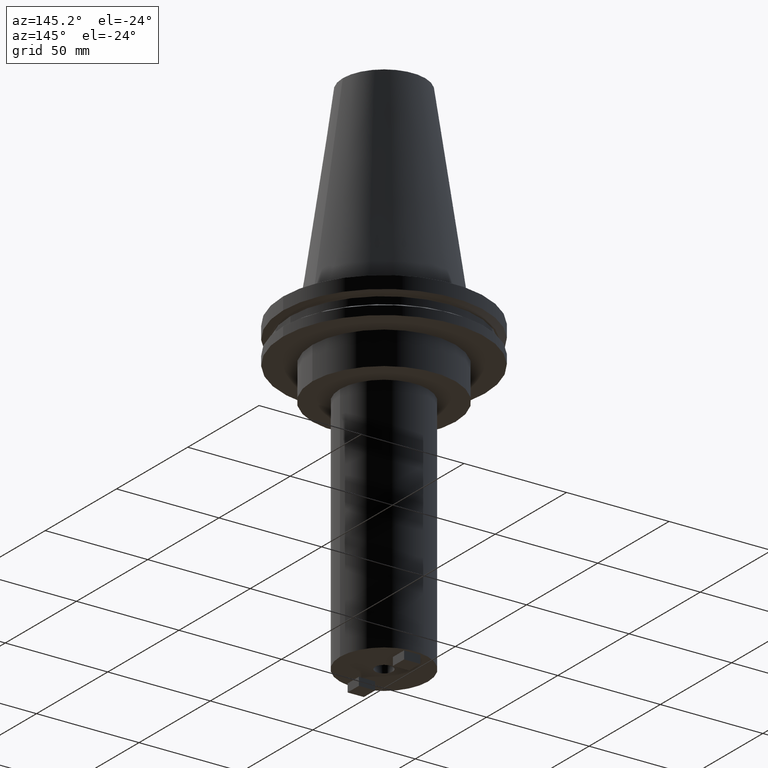
[diagram: clean part render]
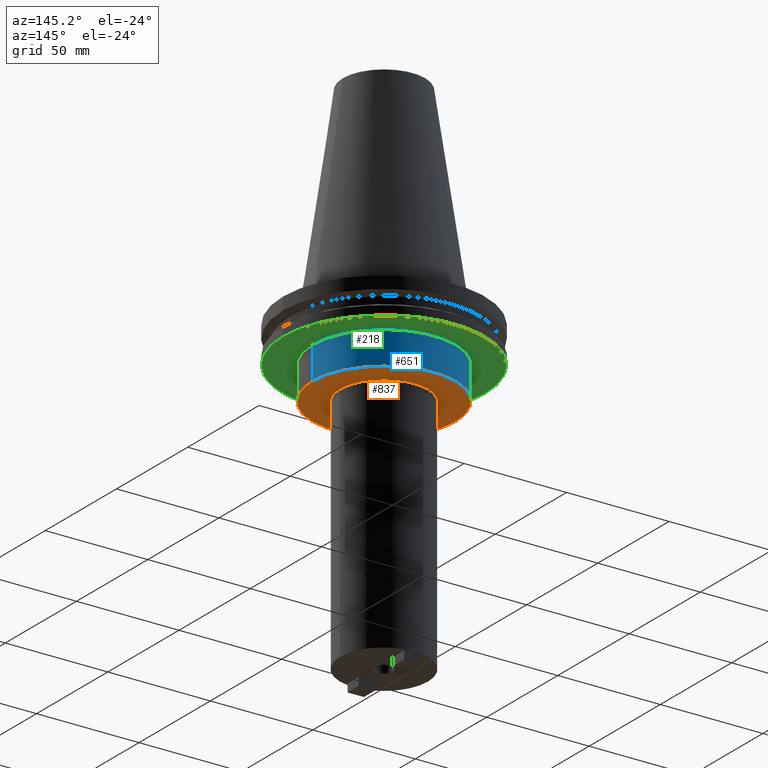
[diagram: same view with three faces highlighted in distinct colors, each labeled with its STEP entity id]
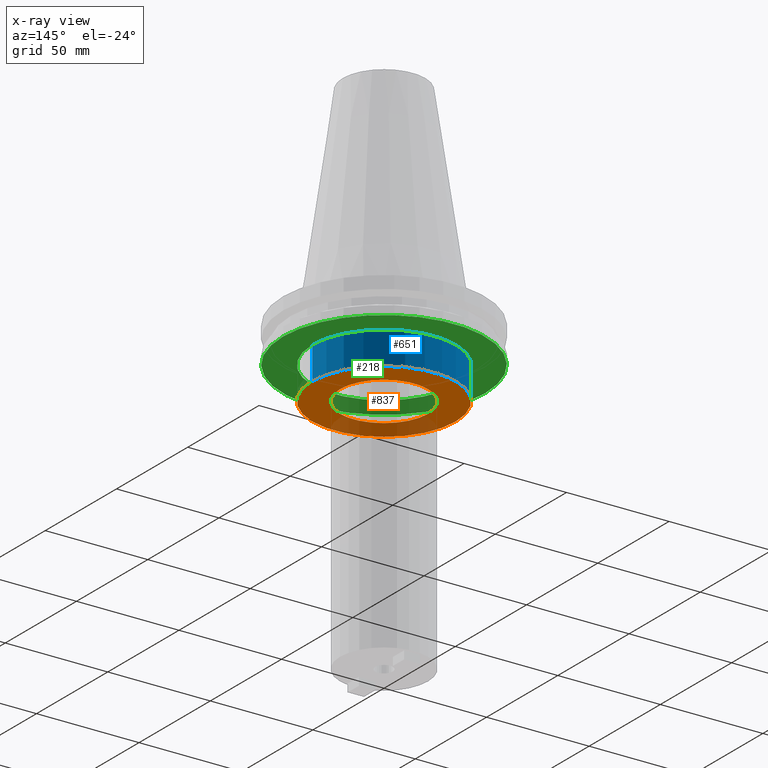
[diagram: x-ray of the same camera — body ghosted, the three highlighted faces saturated]
A machine part, auxiliary view with three faces highlighted in distinct colors.
The next image is the same camera in x-ray (body ghosted, the three faces saturated) — at least one of them is partly hidden behind the body in this view.
Their STEP definitions:

[orange] entity #837 — the highlighted planar face has unit normal (0, -0, 1).
#29 = AXIS2_PLACEMENT_3D ( 'NONE', #1075, #139, #559 ) ;
#40 = VERTEX_POINT ( 'NONE', #289 ) ;
#58 = FACE_BOUND ( 'NONE', #421, .T. ) ;
#102 = EDGE_LOOP ( 'NONE', ( #1059, #880 ) ) ;
#139 = DIRECTION ( 'NONE',  ( -0.000000000000000000, -0.000000000000000000, 1.000000000000000000 ) ) ;
#170 = CIRCLE ( 'NONE', #321, 21.45029999999999859 ) ;
#173 = DIRECTION ( 'NONE',  ( 1.000000000000000000, 0.000000000000000000, 0.000000000000000000 ) ) ;
#203 = VERTEX_POINT ( 'NONE', #226 ) ;
#210 = CARTESIAN_POINT ( 'NONE',  ( 21.45029999999999859, 0.000000000000000000, -35.04999999999999716 ) ) ;
#226 = CARTESIAN_POINT ( 'NONE',  ( -34.92499999999999716, 4.277078946022130887E-15, -35.04999999999999716 ) ) ;
#241 = AXIS2_PLACEMENT_3D ( 'NONE', #1067, #390, #789 ) ;
#253 = AXIS2_PLACEMENT_3D ( 'NONE', #316, #910, #488 ) ;
#254 = CARTESIAN_POINT ( 'NONE',  ( 0.000000000000000000, 0.000000000000000000, -35.04999999999999716 ) ) ;
#270 = EDGE_CURVE ( 'NONE', #778, #660, #170, .T. ) ;
#288 = ORIENTED_EDGE ( 'NONE', *, *, #270, .T. ) ;
#289 = CARTESIAN_POINT ( 'NONE',  ( 34.92499999999999716, 0.000000000000000000, -35.04999999999999716 ) ) ;
#309 = PLANE ( 'NONE',  #534 ) ;
#316 = CARTESIAN_POINT ( 'NONE',  ( 0.000000000000000000, 0.000000000000000000, -35.04999999999999716 ) ) ;
#321 = AXIS2_PLACEMENT_3D ( 'NONE', #254, #413, #173 ) ;
#370 = DIRECTION ( 'NONE',  ( 1.000000000000000000, 0.000000000000000000, 0.000000000000000000 ) ) ;
#384 = FACE_OUTER_BOUND ( 'NONE', #102, .T. ) ;
#390 = DIRECTION ( 'NONE',  ( -0.000000000000000000, -0.000000000000000000, 1.000000000000000000 ) ) ;
#413 = DIRECTION ( 'NONE',  ( -0.000000000000000000, -0.000000000000000000, 1.000000000000000000 ) ) ;
#421 = EDGE_LOOP ( 'NONE', ( #288, #1065 ) ) ;
#430 = CIRCLE ( 'NONE', #241, 34.92499999999999716 ) ;
#488 = DIRECTION ( 'NONE',  ( 1.000000000000000000, 0.000000000000000000, 0.000000000000000000 ) ) ;
#534 = AXIS2_PLACEMENT_3D ( 'NONE', #709, #808, #370 ) ;
#559 = DIRECTION ( 'NONE',  ( 1.000000000000000000, 0.000000000000000000, 0.000000000000000000 ) ) ;
#563 = CIRCLE ( 'NONE', #29, 34.92499999999999716 ) ;
#598 = CIRCLE ( 'NONE', #253, 21.45029999999999859 ) ;
#660 = VERTEX_POINT ( 'NONE', #949 ) ;
#709 = CARTESIAN_POINT ( 'NONE',  ( 0.000000000000000000, 34.92499999999999716, -35.04999999999999716 ) ) ;
#778 = VERTEX_POINT ( 'NONE', #210 ) ;
#789 = DIRECTION ( 'NONE',  ( 1.000000000000000000, 0.000000000000000000, 0.000000000000000000 ) ) ;
#808 = DIRECTION ( 'NONE',  ( 0.000000000000000000, -0.000000000000000000, 1.000000000000000000 ) ) ;
#837 = ADVANCED_FACE ( 'NONE', ( #58, #384 ), #309, .F. ) ;
#870 = EDGE_CURVE ( 'NONE', #203, #40, #430, .T. ) ;
#878 = EDGE_CURVE ( 'NONE', #40, #203, #563, .T. ) ;
#880 = ORIENTED_EDGE ( 'NONE', *, *, #870, .F. ) ;
#910 = DIRECTION ( 'NONE',  ( -0.000000000000000000, -0.000000000000000000, 1.000000000000000000 ) ) ;
#949 = CARTESIAN_POINT ( 'NONE',  ( -21.45029999999999859, 2.626904123575046818E-15, -35.04999999999999716 ) ) ;
#959 = EDGE_CURVE ( 'NONE', #660, #778, #598, .T. ) ;
#1059 = ORIENTED_EDGE ( 'NONE', *, *, #878, .F. ) ;
#1065 = ORIENTED_EDGE ( 'NONE', *, *, #959, .T. ) ;
#1067 = CARTESIAN_POINT ( 'NONE',  ( 0.000000000000000000, 0.000000000000000000, -35.04999999999999716 ) ) ;
#1075 = CARTESIAN_POINT ( 'NONE',  ( 0.000000000000000000, 0.000000000000000000, -35.04999999999999716 ) ) ;

[blue] entity #651 — the highlighted cylindrical surface (partial cylindrical patch) has radius 34.925 mm, axis along (-0, -0, 1).
#7 = ORIENTED_EDGE ( 'NONE', *, *, #950, .F. ) ;
#9 = DIRECTION ( 'NONE',  ( -0.000000000000000000, -0.000000000000000000, 1.000000000000000000 ) ) ;
#12 = CARTESIAN_POINT ( 'NONE',  ( 0.000000000000000000, 0.000000000000000000, -19.04999999999999716 ) ) ;
#29 = AXIS2_PLACEMENT_3D ( 'NONE', #1075, #139, #559 ) ;
#40 = VERTEX_POINT ( 'NONE', #289 ) ;
#67 = VECTOR ( 'NONE', #893, 1000.000000000000000 ) ;
#77 = DIRECTION ( 'NONE',  ( 1.000000000000000000, 0.000000000000000000, 0.000000000000000000 ) ) ;
#90 = CYLINDRICAL_SURFACE ( 'NONE', #812, 34.92499999999999716 ) ;
#109 = LINE ( 'NONE', #861, #712 ) ;
#113 = DIRECTION ( 'NONE',  ( -0.000000000000000000, -0.000000000000000000, 1.000000000000000000 ) ) ;
#139 = DIRECTION ( 'NONE',  ( -0.000000000000000000, -0.000000000000000000, 1.000000000000000000 ) ) ;
#165 = CIRCLE ( 'NONE', #634, 34.92499999999999716 ) ;
#189 = VERTEX_POINT ( 'NONE', #792 ) ;
#203 = VERTEX_POINT ( 'NONE', #226 ) ;
#226 = CARTESIAN_POINT ( 'NONE',  ( -34.92499999999999716, 4.277078946022130887E-15, -35.04999999999999716 ) ) ;
#289 = CARTESIAN_POINT ( 'NONE',  ( 34.92499999999999716, 0.000000000000000000, -35.04999999999999716 ) ) ;
#559 = DIRECTION ( 'NONE',  ( 1.000000000000000000, 0.000000000000000000, 0.000000000000000000 ) ) ;
#560 = EDGE_LOOP ( 'NONE', ( #710, #783, #7, #869 ) ) ;
#563 = CIRCLE ( 'NONE', #29, 34.92499999999999716 ) ;
#634 = AXIS2_PLACEMENT_3D ( 'NONE', #12, #664, #673 ) ;
#641 = LINE ( 'NONE', #986, #67 ) ;
#651 = ADVANCED_FACE ( 'NONE', ( #925 ), #90, .T. ) ;
#664 = DIRECTION ( 'NONE',  ( -0.000000000000000000, -0.000000000000000000, 1.000000000000000000 ) ) ;
#673 = DIRECTION ( 'NONE',  ( 1.000000000000000000, 0.000000000000000000, 0.000000000000000000 ) ) ;
#710 = ORIENTED_EDGE ( 'NONE', *, *, #878, .T. ) ;
#712 = VECTOR ( 'NONE', #113, 1000.000000000000000 ) ;
#783 = ORIENTED_EDGE ( 'NONE', *, *, #850, .T. ) ;
#786 = EDGE_CURVE ( 'NONE', #40, #1008, #109, .T. ) ;
#792 = CARTESIAN_POINT ( 'NONE',  ( -34.92499999999999716, 4.277078946022130887E-15, -19.04999999999999716 ) ) ;
#812 = AXIS2_PLACEMENT_3D ( 'NONE', #824, #9, #77 ) ;
#824 = CARTESIAN_POINT ( 'NONE',  ( 0.000000000000000000, 0.000000000000000000, 101.5999999999999943 ) ) ;
#828 = CARTESIAN_POINT ( 'NONE',  ( 34.92499999999999716, 0.000000000000000000, -19.04999999999999716 ) ) ;
#850 = EDGE_CURVE ( 'NONE', #203, #189, #641, .T. ) ;
#861 = CARTESIAN_POINT ( 'NONE',  ( 34.92499999999999716, 0.000000000000000000, 101.5999999999999943 ) ) ;
#869 = ORIENTED_EDGE ( 'NONE', *, *, #786, .F. ) ;
#878 = EDGE_CURVE ( 'NONE', #40, #203, #563, .T. ) ;
#893 = DIRECTION ( 'NONE',  ( -0.000000000000000000, -0.000000000000000000, 1.000000000000000000 ) ) ;
#925 = FACE_OUTER_BOUND ( 'NONE', #560, .T. ) ;
#950 = EDGE_CURVE ( 'NONE', #1008, #189, #165, .T. ) ;
#986 = CARTESIAN_POINT ( 'NONE',  ( -34.92499999999999716, 4.277078946022130887E-15, 101.5999999999999943 ) ) ;
#1008 = VERTEX_POINT ( 'NONE', #828 ) ;
#1075 = CARTESIAN_POINT ( 'NONE',  ( 0.000000000000000000, 0.000000000000000000, -35.04999999999999716 ) ) ;

[green] entity #218 — the highlighted planar face has unit normal (0, -0, 1).
#12 = CARTESIAN_POINT ( 'NONE',  ( 0.000000000000000000, 0.000000000000000000, -19.04999999999999716 ) ) ;
#48 = VERTEX_POINT ( 'NONE', #776 ) ;
#55 = VERTEX_POINT ( 'NONE', #667 ) ;
#56 = FACE_BOUND ( 'NONE', #59, .T. ) ;
#59 = EDGE_LOOP ( 'NONE', ( #810, #402 ) ) ;
#95 = ORIENTED_EDGE ( 'NONE', *, *, #303, .F. ) ;
#120 = CIRCLE ( 'NONE', #742, 49.21499999999998920 ) ;
#143 = DIRECTION ( 'NONE',  ( -0.000000000000000000, -0.000000000000000000, 1.000000000000000000 ) ) ;
#153 = CARTESIAN_POINT ( 'NONE',  ( 0.000000000000000000, 0.000000000000000000, -19.04999999999999716 ) ) ;
#165 = CIRCLE ( 'NONE', #634, 34.92499999999999716 ) ;
#189 = VERTEX_POINT ( 'NONE', #792 ) ;
#218 = ADVANCED_FACE ( 'NONE', ( #885, #56 ), #899, .F. ) ;
#235 = DIRECTION ( 'NONE',  ( -0.000000000000000000, -0.000000000000000000, 1.000000000000000000 ) ) ;
#285 = EDGE_CURVE ( 'NONE', #189, #1008, #581, .T. ) ;
#303 = EDGE_CURVE ( 'NONE', #48, #55, #120, .T. ) ;
#306 = CARTESIAN_POINT ( 'NONE',  ( 0.000000000000000000, 0.000000000000000000, -19.04999999999999716 ) ) ;
#382 = DIRECTION ( 'NONE',  ( 0.000000000000000000, -0.000000000000000000, 1.000000000000000000 ) ) ;
#402 = ORIENTED_EDGE ( 'NONE', *, *, #285, .T. ) ;
#415 = ORIENTED_EDGE ( 'NONE', *, *, #801, .F. ) ;
#453 = CARTESIAN_POINT ( 'NONE',  ( 0.000000000000000000, 49.21499999999998920, -19.04999999999999716 ) ) ;
#474 = CIRCLE ( 'NONE', #908, 49.21499999999998920 ) ;
#493 = AXIS2_PLACEMENT_3D ( 'NONE', #153, #235, #580 ) ;
#580 = DIRECTION ( 'NONE',  ( 1.000000000000000000, 0.000000000000000000, 0.000000000000000000 ) ) ;
#581 = CIRCLE ( 'NONE', #493, 34.92499999999999716 ) ;
#634 = AXIS2_PLACEMENT_3D ( 'NONE', #12, #664, #673 ) ;
#652 = CARTESIAN_POINT ( 'NONE',  ( 0.000000000000000000, 0.000000000000000000, -19.04999999999999716 ) ) ;
#664 = DIRECTION ( 'NONE',  ( -0.000000000000000000, -0.000000000000000000, 1.000000000000000000 ) ) ;
#667 = CARTESIAN_POINT ( 'NONE',  ( -49.21499999999998920, 6.027099222003697037E-15, -19.04999999999999716 ) ) ;
#673 = DIRECTION ( 'NONE',  ( 1.000000000000000000, 0.000000000000000000, 0.000000000000000000 ) ) ;
#713 = DIRECTION ( 'NONE',  ( 1.000000000000000000, 0.000000000000000000, 0.000000000000000000 ) ) ;
#719 = EDGE_LOOP ( 'NONE', ( #95, #415 ) ) ;
#742 = AXIS2_PLACEMENT_3D ( 'NONE', #652, #1080, #1011 ) ;
#776 = CARTESIAN_POINT ( 'NONE',  ( 49.21499999999998920, 0.000000000000000000, -19.04999999999999716 ) ) ;
#792 = CARTESIAN_POINT ( 'NONE',  ( -34.92499999999999716, 4.277078946022130887E-15, -19.04999999999999716 ) ) ;
#801 = EDGE_CURVE ( 'NONE', #55, #48, #474, .T. ) ;
#810 = ORIENTED_EDGE ( 'NONE', *, *, #950, .T. ) ;
#828 = CARTESIAN_POINT ( 'NONE',  ( 34.92499999999999716, 0.000000000000000000, -19.04999999999999716 ) ) ;
#885 = FACE_OUTER_BOUND ( 'NONE', #719, .T. ) ;
#892 = AXIS2_PLACEMENT_3D ( 'NONE', #453, #382, #713 ) ;
#899 = PLANE ( 'NONE',  #892 ) ;
#908 = AXIS2_PLACEMENT_3D ( 'NONE', #306, #143, #1071 ) ;
#950 = EDGE_CURVE ( 'NONE', #1008, #189, #165, .T. ) ;
#1008 = VERTEX_POINT ( 'NONE', #828 ) ;
#1011 = DIRECTION ( 'NONE',  ( 1.000000000000000000, 0.000000000000000000, 0.000000000000000000 ) ) ;
#1071 = DIRECTION ( 'NONE',  ( 1.000000000000000000, 0.000000000000000000, 0.000000000000000000 ) ) ;
#1080 = DIRECTION ( 'NONE',  ( -0.000000000000000000, -0.000000000000000000, 1.000000000000000000 ) ) ;